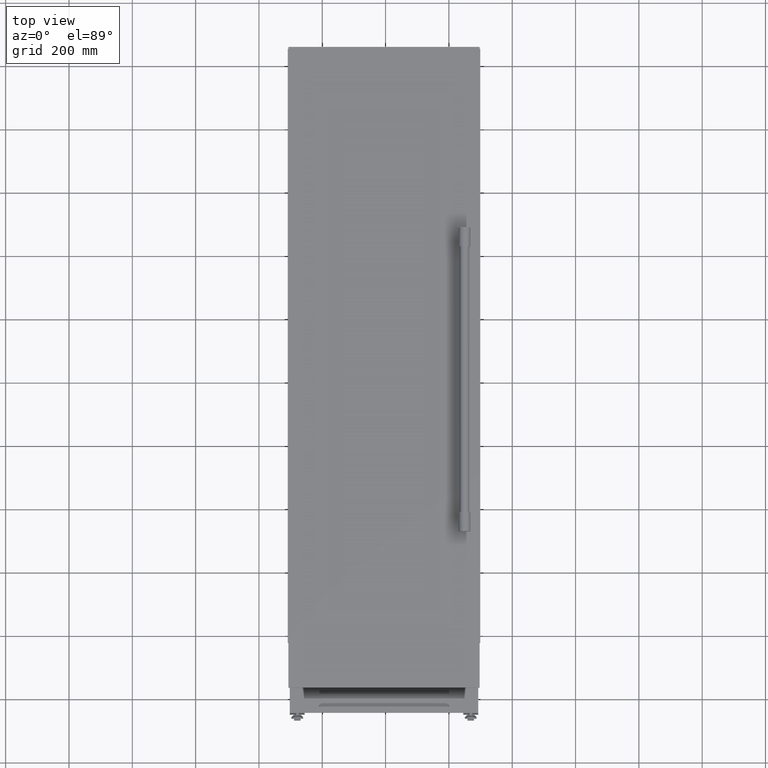
[diagram: clean part render]
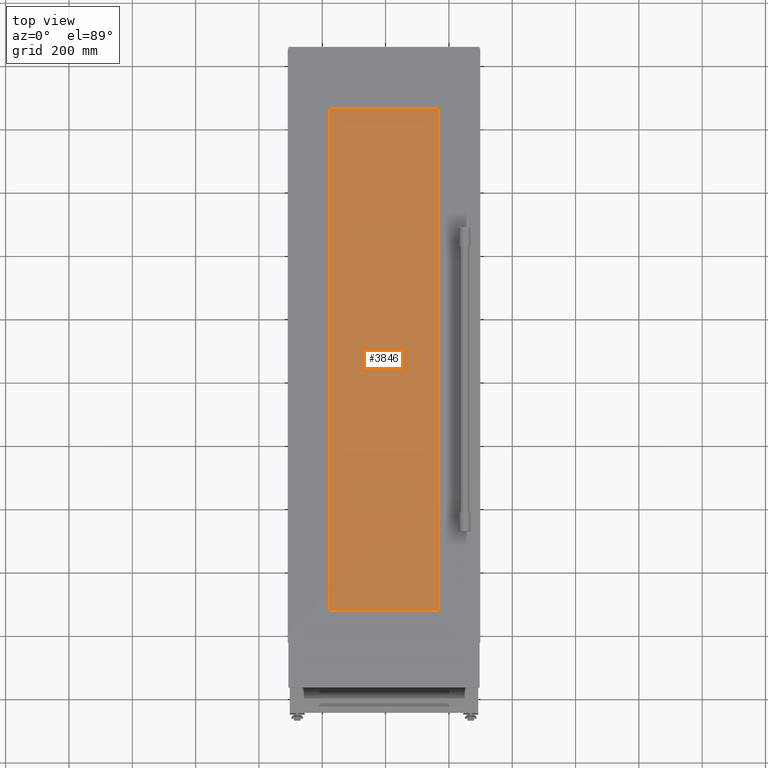
[diagram: same view with one face highlighted and labeled with its STEP entity id]
A machine part, top view. The second image highlights one B-rep face of the part: STEP entity #3846.
In plain terms, the highlighted planar face has unit normal (0, 0, -1).
Its self-contained STEP definition (entity closure, byte-faithful):
#233 = LINE ( 'NONE', #4493, #5254 ) ;
#608 = PLANE ( 'NONE',  #1902 ) ;
#718 = VERTEX_POINT ( 'NONE', #999 ) ;
#844 = VERTEX_POINT ( 'NONE', #5144 ) ;
#999 = CARTESIAN_POINT ( 'NONE',  ( 423.0000006499994900, -729.1499999999999800, 339.5000000000000600 ) ) ;
#1483 = CARTESIAN_POINT ( 'NONE',  ( 766.9999993500005100, -729.1499999999999800, 339.5000000000000600 ) ) ;
#1902 = AXIS2_PLACEMENT_3D ( 'NONE', #6922, #2912, #5407 ) ;
#2071 = EDGE_CURVE ( 'NONE', #844, #3651, #3862, .T. ) ;
#2081 = FACE_OUTER_BOUND ( 'NONE', #8677, .T. ) ;
#2912 = DIRECTION ( 'NONE',  ( 0.0000000000000000000, 0.0000000000000000000, -1.000000000000000000 ) ) ;
#3452 = CARTESIAN_POINT ( 'NONE',  ( 766.9999993500005100, -729.1499999999999800, 339.5000000000000600 ) ) ;
#3628 = DIRECTION ( 'NONE',  ( 0.0000000000000000000, -1.000000000000000000, -0.0000000000000000000 ) ) ;
#3651 = VERTEX_POINT ( 'NONE', #8813 ) ;
#3723 = VERTEX_POINT ( 'NONE', #9881 ) ;
#3846 = ADVANCED_FACE ( 'NONE', ( #2081 ), #608, .F. ) ;
#3862 = LINE ( 'NONE', #3452, #5386 ) ;
#3922 = DIRECTION ( 'NONE',  ( -1.000000000000000000, 0.0000000000000000000, 0.0000000000000000000 ) ) ;
#4493 = CARTESIAN_POINT ( 'NONE',  ( 766.9999993500005100, 856.8500000000001400, 339.5000000000000600 ) ) ;
#4532 = DIRECTION ( 'NONE',  ( 1.000000000000000000, -0.0000000000000000000, -0.0000000000000000000 ) ) ;
#4641 = EDGE_CURVE ( 'NONE', #3651, #718, #10220, .T. ) ;
#5144 = CARTESIAN_POINT ( 'NONE',  ( 766.9999993500005100, 856.8500000000001400, 339.5000000000000600 ) ) ;
#5254 = VECTOR ( 'NONE', #4532, 1000.000000000000000 ) ;
#5368 = EDGE_CURVE ( 'NONE', #718, #3723, #9833, .T. ) ;
#5386 = VECTOR ( 'NONE', #3628, 1000.000000000000000 ) ;
#5407 = DIRECTION ( 'NONE',  ( 1.000000000000000000, 0.0000000000000000000, 0.0000000000000000000 ) ) ;
#6567 = EDGE_CURVE ( 'NONE', #3723, #844, #233, .T. ) ;
#6922 = CARTESIAN_POINT ( 'NONE',  ( 595.0000000000000000, 0.0000000000000000000, 339.5000000000000600 ) ) ;
#7105 = VECTOR ( 'NONE', #10127, 1000.000000000000000 ) ;
#7826 = CARTESIAN_POINT ( 'NONE',  ( 423.0000006499994900, -729.1499999999999800, 339.5000000000000600 ) ) ;
#8245 = ORIENTED_EDGE ( 'NONE', *, *, #2071, .F. ) ;
#8677 = EDGE_LOOP ( 'NONE', ( #10144, #9970, #8245, #9591 ) ) ;
#8813 = CARTESIAN_POINT ( 'NONE',  ( 766.9999993500005100, -729.1499999999999800, 339.5000000000000600 ) ) ;
#8832 = VECTOR ( 'NONE', #3922, 1000.000000000000000 ) ;
#9591 = ORIENTED_EDGE ( 'NONE', *, *, #6567, .F. ) ;
#9833 = LINE ( 'NONE', #7826, #7105 ) ;
#9881 = CARTESIAN_POINT ( 'NONE',  ( 423.0000006499994900, 856.8500000000001400, 339.5000000000000600 ) ) ;
#9970 = ORIENTED_EDGE ( 'NONE', *, *, #4641, .F. ) ;
#10127 = DIRECTION ( 'NONE',  ( 0.0000000000000000000, 1.000000000000000000, 0.0000000000000000000 ) ) ;
#10144 = ORIENTED_EDGE ( 'NONE', *, *, #5368, .F. ) ;
#10220 = LINE ( 'NONE', #1483, #8832 ) ;